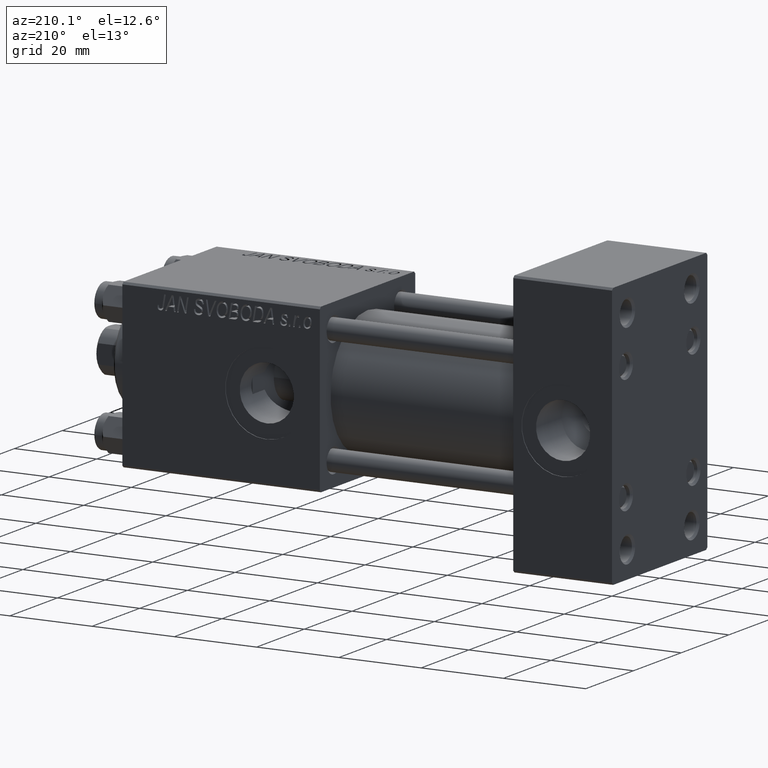
[diagram: clean part render]
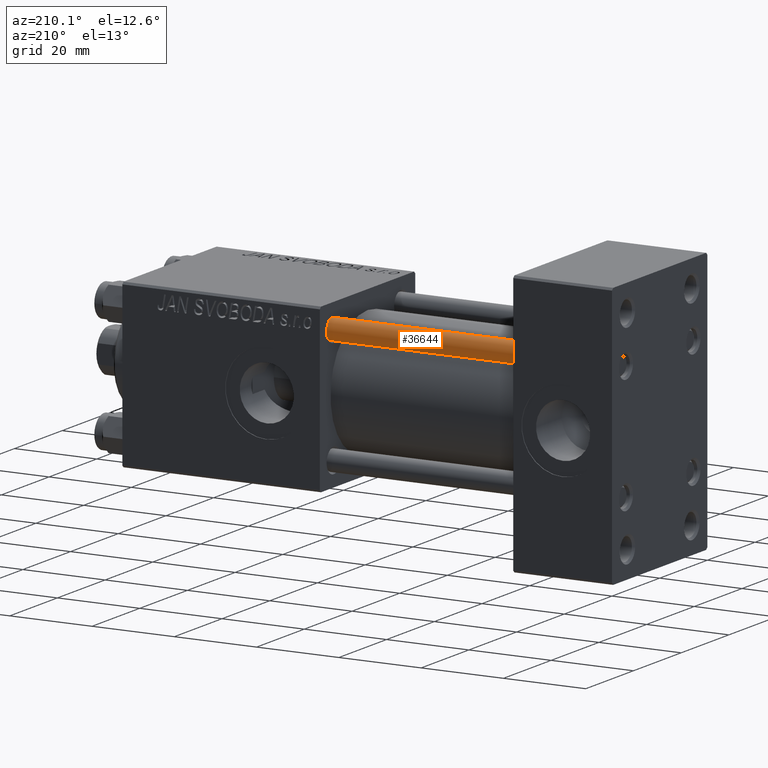
[diagram: same view with one face highlighted and labeled with its STEP entity id]
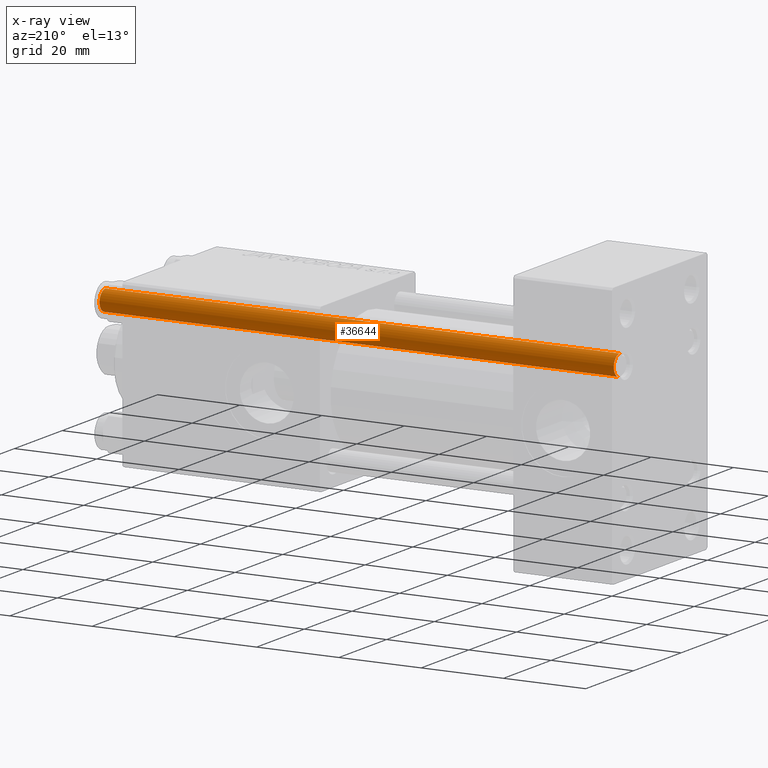
[diagram: x-ray of the same camera — body ghosted, the highlighted face saturated]
A machine part, auxiliary view. The second image highlights one B-rep face of the part: STEP entity #36644.
The next image is the same camera in x-ray: the body ghosted, the highlighted face saturated — about 0% of this face is hidden behind the body in this view.
In plain terms, the highlighted cylindrical surface (edge-blend (fillet) strip) has radius 2.5 mm, axis along (1, 0, 0).
Its self-contained STEP definition (entity closure, byte-faithful):
#800 = DIRECTION ( 'NONE',  ( 1.000000000000000000, 0.000000000000000000, 0.000000000000000000 ) ) ;
#1739 = VERTEX_POINT ( 'NONE', #37545 ) ;
#4772 = ORIENTED_EDGE ( 'NONE', *, *, #26746, .F. ) ;
#6667 = AXIS2_PLACEMENT_3D ( 'NONE', #26803, #12157, #800 ) ;
#8428 = CARTESIAN_POINT ( 'NONE',  ( -2.500000000000000000, 0.000000000000000000, 126.0000000000000000 ) ) ;
#9583 = CIRCLE ( 'NONE', #16026, 2.500000000000000000 ) ;
#9880 = CARTESIAN_POINT ( 'NONE',  ( -2.500000000000000000, 0.000000000000000000, 125.5000000000000568 ) ) ;
#9943 = ORIENTED_EDGE ( 'NONE', *, *, #11782, .T. ) ;
#10415 = VERTEX_POINT ( 'NONE', #9880 ) ;
#11782 = EDGE_CURVE ( 'NONE', #41797, #10415, #9583, .T. ) ;
#12083 = DIRECTION ( 'NONE',  ( -0.000000000000000000, -0.000000000000000000, -1.000000000000000000 ) ) ;
#12157 = DIRECTION ( 'NONE',  ( -0.000000000000000000, -0.000000000000000000, 1.000000000000000000 ) ) ;
#12448 = DIRECTION ( 'NONE',  ( -0.000000000000000000, -0.000000000000000000, -1.000000000000000000 ) ) ;
#13456 = EDGE_LOOP ( 'NONE', ( #4772, #9943, #32532, #18764 ) ) ;
#15178 = CARTESIAN_POINT ( 'NONE',  ( -2.500000000000000000, 0.000000000000000000, 0.5000000000000004441 ) ) ;
#16026 = AXIS2_PLACEMENT_3D ( 'NONE', #27221, #42379, #38833 ) ;
#18764 = ORIENTED_EDGE ( 'NONE', *, *, #24744, .T. ) ;
#23040 = VECTOR ( 'NONE', #27359, 1000.000000000000000 ) ;
#23300 = DIRECTION ( 'NONE',  ( -1.000000000000000000, 0.000000000000000000, 0.000000000000000000 ) ) ;
#24744 = EDGE_CURVE ( 'NONE', #26361, #1739, #37344, .T. ) ;
#26361 = VERTEX_POINT ( 'NONE', #15178 ) ;
#26746 = EDGE_CURVE ( 'NONE', #41797, #1739, #35559, .T. ) ;
#26803 = CARTESIAN_POINT ( 'NONE',  ( 0.000000000000000000, 0.000000000000000000, 0.5000000000000004441 ) ) ;
#27178 = AXIS2_PLACEMENT_3D ( 'NONE', #31867, #12448, #23300 ) ;
#27221 = CARTESIAN_POINT ( 'NONE',  ( 0.000000000000000000, 0.000000000000000000, 125.5000000000000568 ) ) ;
#27359 = DIRECTION ( 'NONE',  ( -0.000000000000000000, -0.000000000000000000, -1.000000000000000000 ) ) ;
#29094 = CARTESIAN_POINT ( 'NONE',  ( 2.500000000000000000, 3.061616997868383141E-16, 125.5000000000000568 ) ) ;
#31614 = CYLINDRICAL_SURFACE ( 'NONE', #27178, 2.500000000000000000 ) ;
#31754 = CARTESIAN_POINT ( 'NONE',  ( 2.500000000000000000, 3.061616997868383141E-16, 126.0000000000000000 ) ) ;
#31867 = CARTESIAN_POINT ( 'NONE',  ( 0.000000000000000000, 0.000000000000000000, 126.0000000000000000 ) ) ;
#32532 = ORIENTED_EDGE ( 'NONE', *, *, #42394, .T. ) ;
#34691 = LINE ( 'NONE', #8428, #23040 ) ;
#35559 = LINE ( 'NONE', #31754, #46246 ) ;
#36644 = ADVANCED_FACE ( 'NONE', ( #42997 ), #31614, .T. ) ;
#37344 = CIRCLE ( 'NONE', #6667, 2.500000000000000000 ) ;
#37545 = CARTESIAN_POINT ( 'NONE',  ( 2.500000000000000000, 3.061616997868383141E-16, 0.5000000000000004441 ) ) ;
#38833 = DIRECTION ( 'NONE',  ( 1.000000000000000000, 0.000000000000000000, 0.000000000000000000 ) ) ;
#41797 = VERTEX_POINT ( 'NONE', #29094 ) ;
#42379 = DIRECTION ( 'NONE',  ( 0.000000000000000000, 0.000000000000000000, -1.000000000000000000 ) ) ;
#42394 = EDGE_CURVE ( 'NONE', #10415, #26361, #34691, .T. ) ;
#42997 = FACE_OUTER_BOUND ( 'NONE', #13456, .T. ) ;
#46246 = VECTOR ( 'NONE', #12083, 1000.000000000000000 ) ;